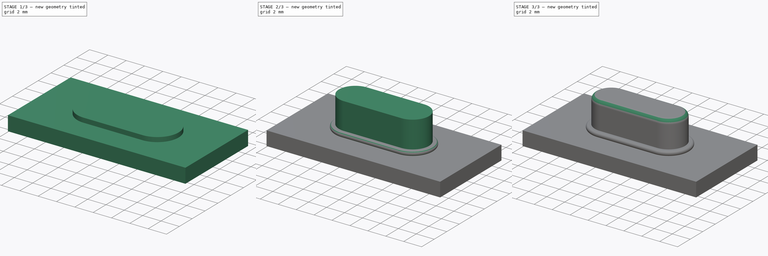
[diagram: build sequence overview — one tinted view per stage of 3, left to right]
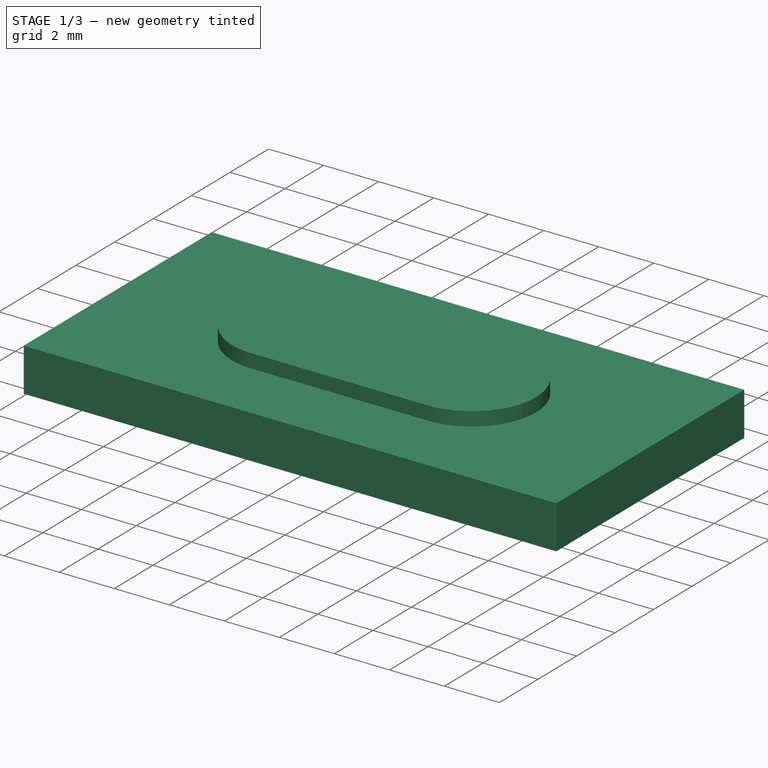
[diagram: stage 1 of 3 — iso view after this stage's code; geometry added in this stage tinted green]
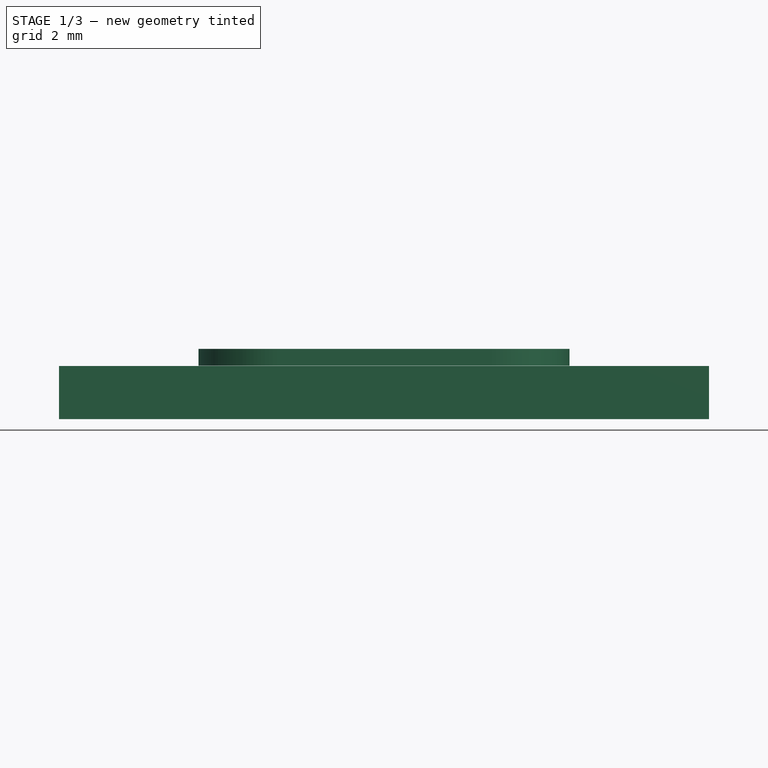
[diagram: stage 1 of 3 — front view after this stage's code; geometry added in this stage tinted green]
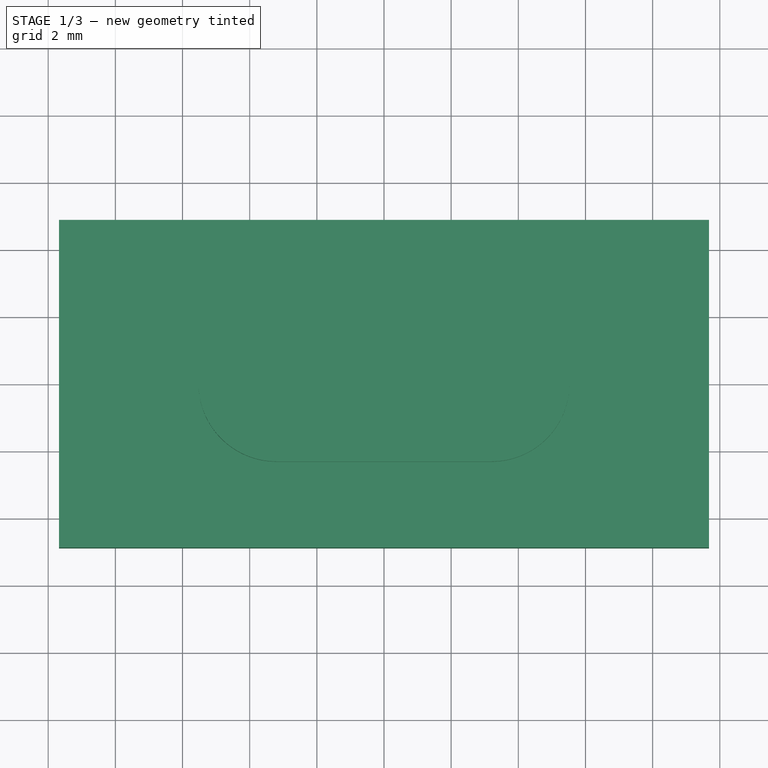
[diagram: stage 1 of 3 — top view after this stage's code; geometry added in this stage tinted green]
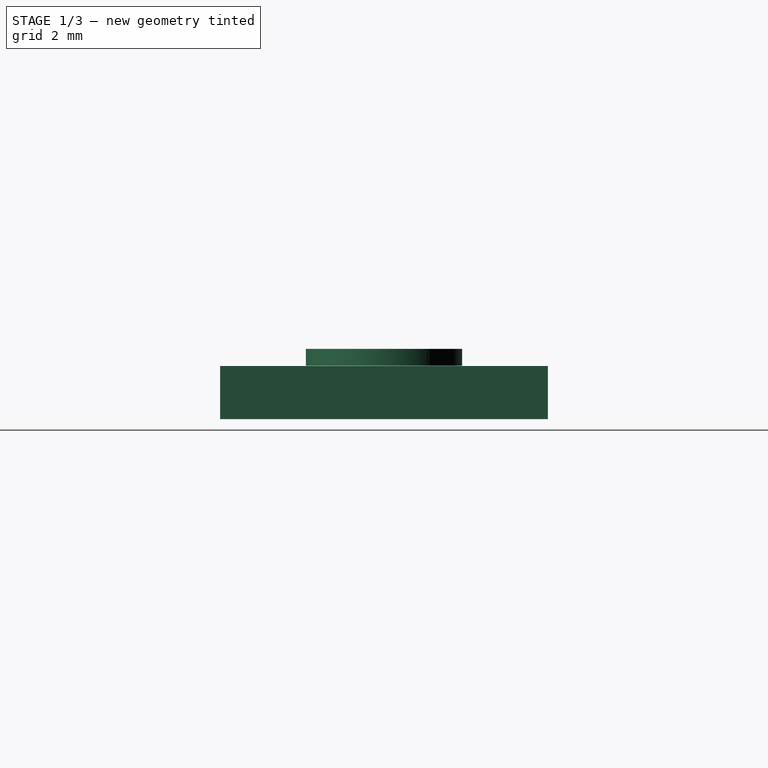
[diagram: stage 1 of 3 — right view after this stage's code; geometry added in this stage tinted green]
FCSTD DOCUMENT  (FreeCAD 0.19R24291 (Git))
Label: XTAL-HC49-4H_ksu
License: All rights reserved
LicenseURL: http://en.wikipedia.org/wiki/All_rights_reserved
objects: Sketcher::SketchObject×5, Part::FeaturePython×4, PartDesign::Pad×3, PartDesign::Fillet×2, PartDesign::Point×2, Part::Feature×2, PartDesign::Plane×1, PartDesign::Pocket×1, PartDesign::Body×1, App::DocumentObjectGroup×1
note: 27 computed .brp shape members not serialized (recipe doc carries the construction recipe); baked Part::Feature solids carry a one-line shape summary decoded from their .brp

FEATURE [Sketcher::SketchObject] Sketch
  FullyConstrained = true
  MapMode = 5
  Support = -> [XY_Plane]
  expr: Constraints[12] = 11.05 - 4.65
  sketch-geometry (4):
    g0: LineSegment StartX=-3.2 StartY=2.325 StartZ=0 EndX=3.2 EndY=2.325 EndZ=0
    g1: LineSegment StartX=-3.2 StartY=-2.325 StartZ=0 EndX=3.2 EndY=-2.325 EndZ=0
    g2: ArcOfCircle CenterX=-3.2 CenterY=0 CenterZ=0 NormalX=0 NormalY=0 NormalZ=1 AngleXU=0 Radius=2.325 StartAngle=1.5708 EndAngle=4.71239
    g3: ArcOfCircle CenterX=3.2 CenterY=-1e-16 CenterZ=0 NormalX=0 NormalY=0 NormalZ=1 AngleXU=0 Radius=2.325 StartAngle=4.71239 EndAngle=7.85398
  constraints (13):
    c: Horizontal(g0)
    c: PointOnObject(g2,g-1)
    c: Coincident(g2,g0)
    c: Coincident(g2,g1)
    c: Coincident(g3,g0)
    c: Coincident(g3,g1)
    c: DistanceY(g0) = 2.325
    c: Vertical(g0,g2)
    c: Vertical(g2,g1)
    c: Vertical(g0,g3)
    c: Vertical(g3,g1)
    c: Symmetric(g2,g3,g-2)
    c: DistanceX(g2,g3) = 6.4
FEATURE [PartDesign::Pad] Pad
  Direction = (1,1,1)
  Length = 0.5
  Length2 = 100
  Profile = -> Sketch
  Type = 0
FEATURE [Sketcher::SketchObject] Sketch004
  ExternalGeometry = -> [DatumPoint,DatumPoint001]
  FullyConstrained = true
  MapMode = 5
  Support = -> [XY_Plane]
  sketch-geometry (2):
    g0: Circle CenterX=2.44 CenterY=0 CenterZ=0 NormalX=0 NormalY=0 NormalZ=1 AngleXU=0 Radius=0.22
    g1: Circle CenterX=-2.44 CenterY=0 CenterZ=0 NormalX=0 NormalY=0 NormalZ=1 AngleXU=0 Radius=0.22
  constraints (4):
    c: Coincident(g0,g-3)
    c: Coincident(g1,g-4)
    c: Equal(g1,g0)
    c: Radius(g1) = 0.22
FEATURE [PartDesign::Body] Body
  Group = -> [Sketch,Pad,Fillet,DatumPlane,Sketch001,Pad001,Fillet001,Sketch002,DatumPoint,DatumPoint001,Pocket,Sketch003,Pad002,Sketch004]
  Origin = -> Origin
FEATURE [Part::FeaturePython] FCrtYd_lines  label="FCrtYd"  # a2plus imported part (geometry in sourceFile) (typed FeaturePython)
  fixedPosition = true
FEATURE [Part::FeaturePython] Filk_lines  label="FrontSilk"  # a2plus imported part (geometry in sourceFile) (typed FeaturePython)
  fixedPosition = true
FEATURE [Part::FeaturePython] THPs  label="PTHs"  # a2plus imported part (geometry in sourceFile) (typed FeaturePython)
  fixedPosition = true
FEATURE [Part::Feature] Shape001003  label="BotPads"
  shape: bbox 6.63 x 1.75 x 0.01 mm, 8 faces, 2 solids (baked)
FEATURE [Part::FeaturePython] newPCB  label="Pcb"  # a2plus imported part (geometry in sourceFile) (typed FeaturePython)
  fixedPosition = true
FEATURE [App::DocumentObjectGroup] XTAL_HC49_4H_fp
  Group = -> [FCrtYd_lines,Filk_lines,Shape001003,THPs,newPCB]
FEATURE [Part::Feature] Shape  label="XTAL-HC49-4H"
  shape: bbox 11.43 x 5.033 x 6.5 mm, 35 faces (baked)
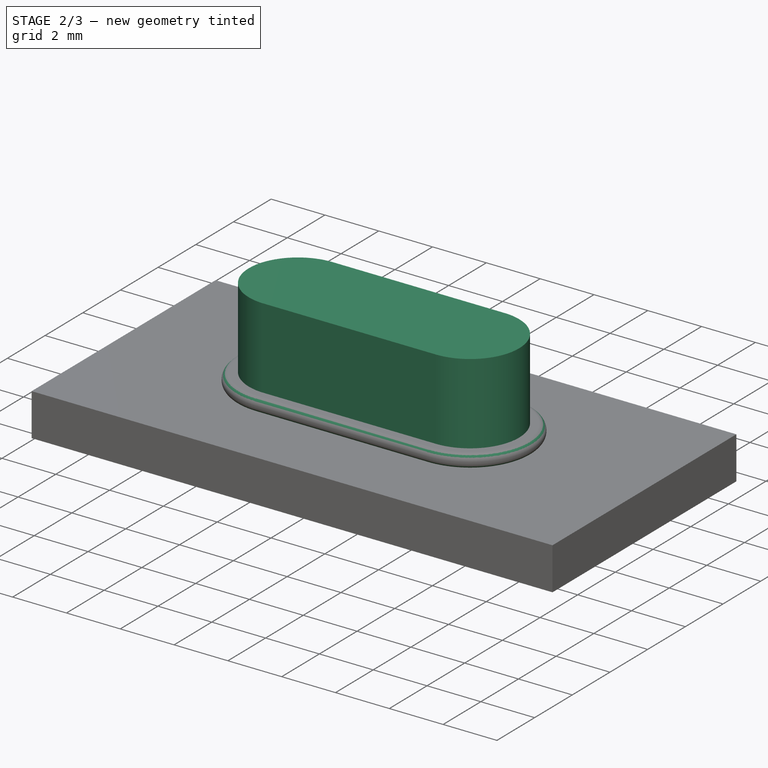
[diagram: stage 2 of 3 — iso view after this stage's code; geometry added in this stage tinted green]
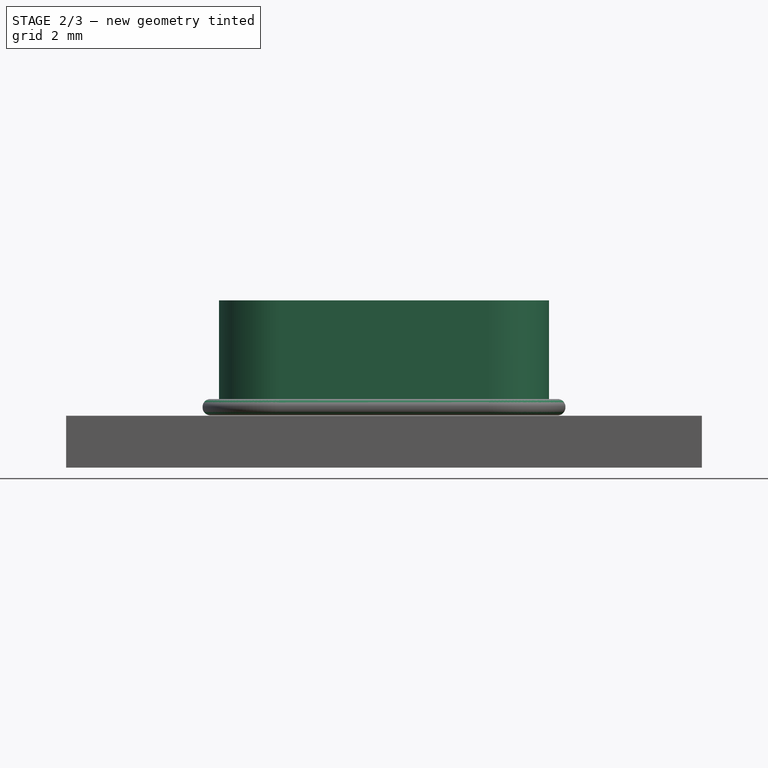
[diagram: stage 2 of 3 — front view after this stage's code; geometry added in this stage tinted green]
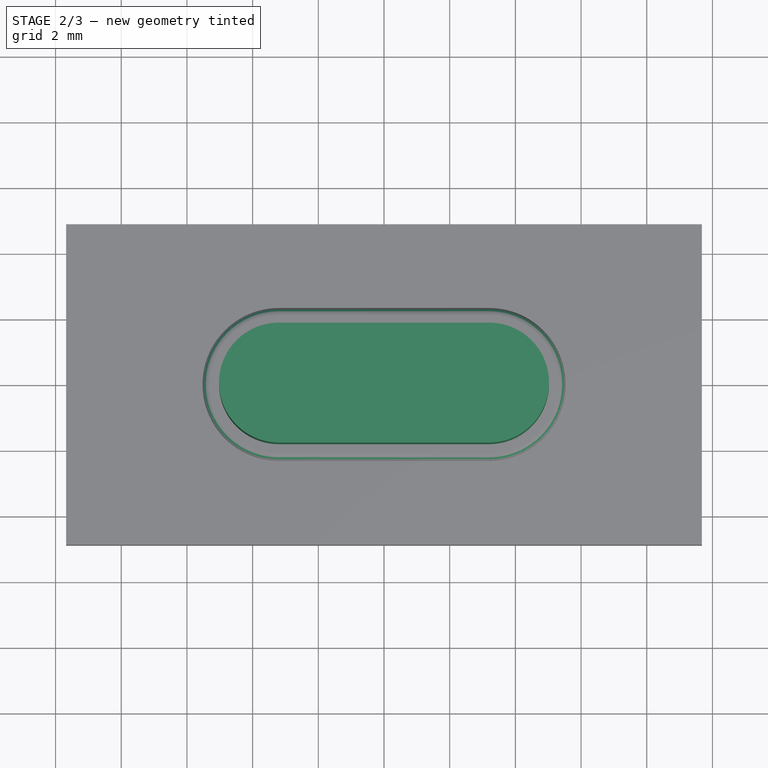
[diagram: stage 2 of 3 — top view after this stage's code; geometry added in this stage tinted green]
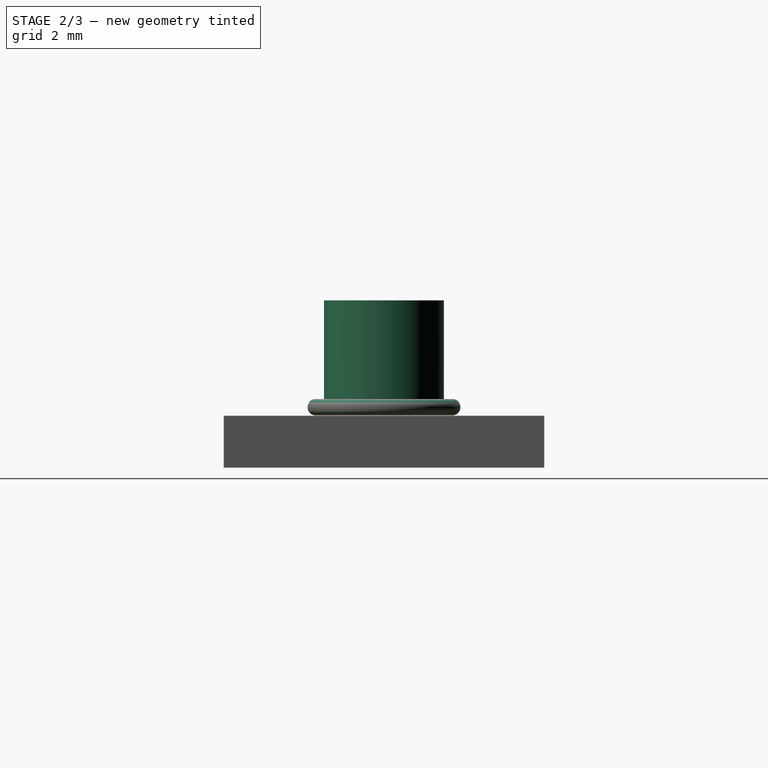
[diagram: stage 2 of 3 — right view after this stage's code; geometry added in this stage tinted green]
FEATURE [PartDesign::Fillet] Fillet  label="base"
  Base = -> Pad [Edge12,Edge4,Edge7,Edge10,Edge9,Edge11,Edge3,Edge6]
  BaseFeature = -> Pad
  Radius = 0.24
  SupportTransform = false
FEATURE [PartDesign::Plane] DatumPlane
  AttachmentOffset = pos=(0,0,0.5) rot=(0,0,1;0rad)
  Length = 60
  MapMode = 5
  Placement = pos=(0,0,0.5) rot=(0,0,1;0rad)
  ResizeMode = 0
  Support = -> [XY_Plane]
  Width = 60
FEATURE [Sketcher::SketchObject] Sketch001
  FullyConstrained = true
  MapMode = 5
  Placement = pos=(0,0,0.5) rot=(0,0,1;0rad)
  Support = -> [DatumPlane]
  expr: Constraints[12] = 11.05 - 4.65
  expr: Constraints[11] = 4.65 / 2 - 0.5
  sketch-geometry (4):
    g0: LineSegment StartX=-3.2 StartY=1.825 StartZ=0 EndX=3.2 EndY=1.825 EndZ=0
    g1: LineSegment StartX=-3.2 StartY=-1.825 StartZ=0 EndX=3.2 EndY=-1.825 EndZ=0
    g2: ArcOfCircle CenterX=-3.2 CenterY=0 CenterZ=0 NormalX=0 NormalY=0 NormalZ=1 AngleXU=0 Radius=1.825 StartAngle=1.5708 EndAngle=4.71239
    g3: ArcOfCircle CenterX=3.2 CenterY=0 CenterZ=0 NormalX=0 NormalY=0 NormalZ=1 AngleXU=0 Radius=1.825 StartAngle=4.71239 EndAngle=7.85398
  constraints (13):
    c: Horizontal(g0)
    c: PointOnObject(g2,g-1)
    c: Coincident(g2,g0)
    c: Coincident(g2,g1)
    c: Coincident(g3,g0)
    c: Coincident(g3,g1)
    c: Vertical(g0,g2)
    c: Vertical(g2,g1)
    c: Vertical(g0,g3)
    c: Vertical(g3,g1)
    c: Symmetric(g2,g3,g-2)
    c: Radius(g2) = 1.825
    c: DistanceX(g2,g3) = 6.4
FEATURE [PartDesign::Pad] Pad001
  BaseFeature = -> Fillet
  Direction = (1,1,1)
  Length = 3
  Length2 = 100
  Profile = -> Sketch001
  Type = 0
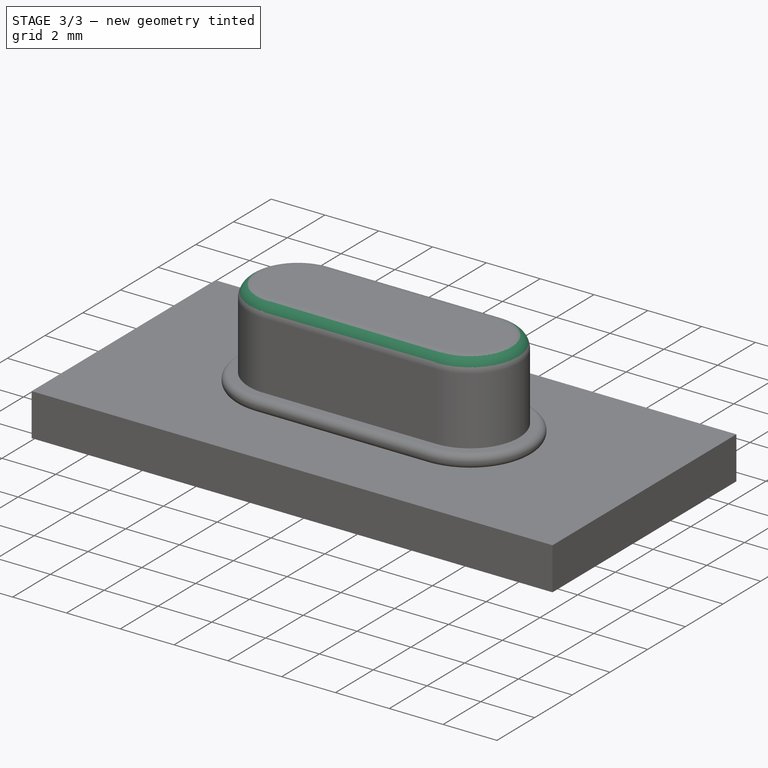
[diagram: stage 3 of 3 — iso view after this stage's code; geometry added in this stage tinted green]
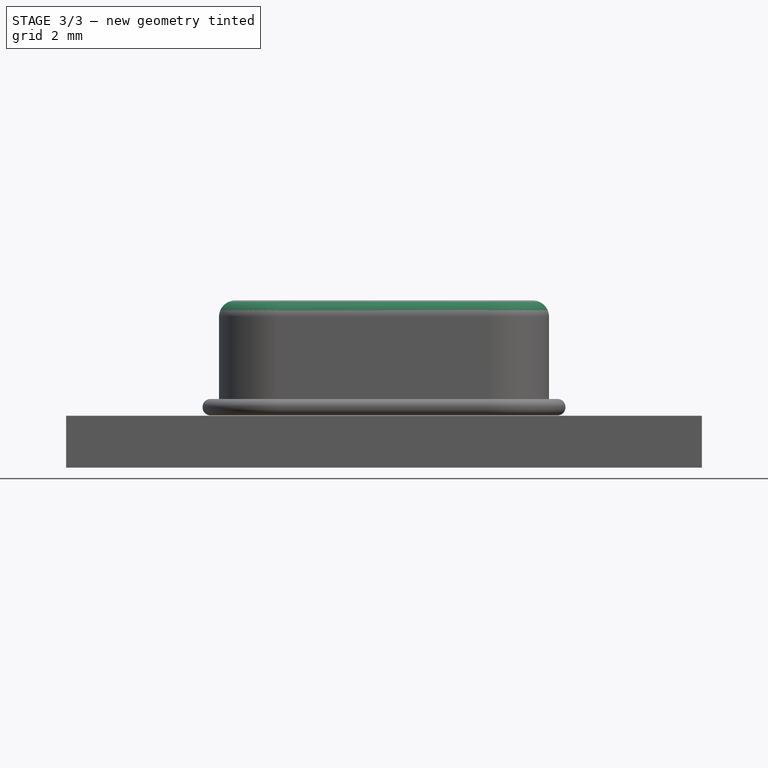
[diagram: stage 3 of 3 — front view after this stage's code; geometry added in this stage tinted green]
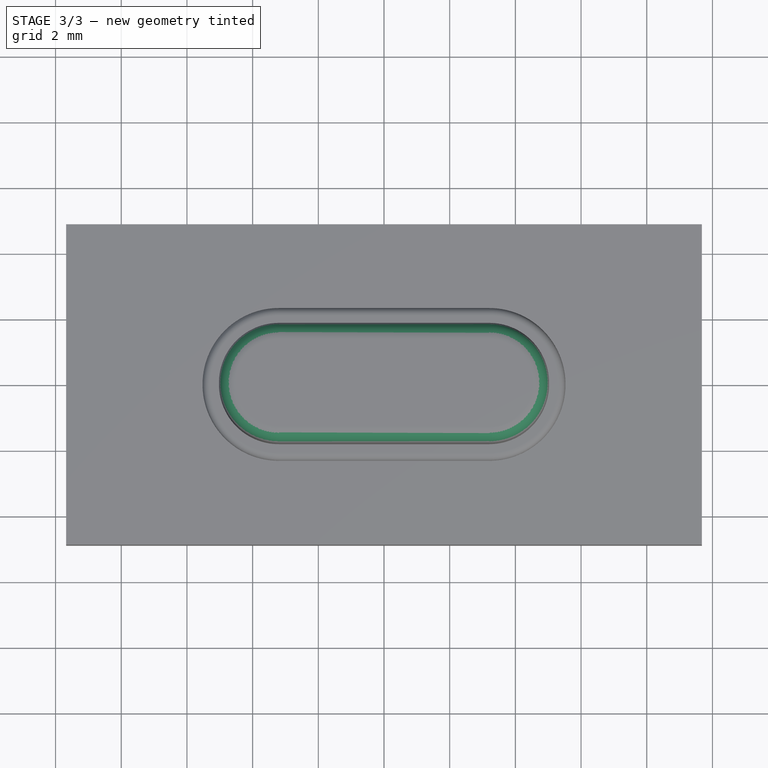
[diagram: stage 3 of 3 — top view after this stage's code; geometry added in this stage tinted green]
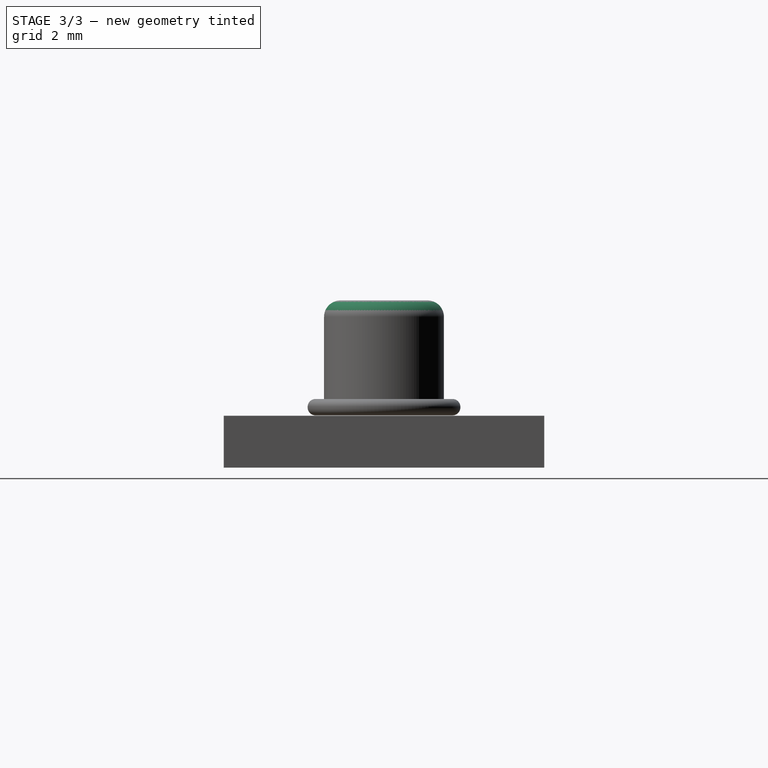
[diagram: stage 3 of 3 — right view after this stage's code; geometry added in this stage tinted green]
FEATURE [PartDesign::Fillet] Fillet001  label="case"
  Base = -> Pad001 [Edge39,Edge40,Edge35,Edge37]
  BaseFeature = -> Pad001
  Radius = 0.5
  SupportTransform = false
FEATURE [Sketcher::SketchObject] Sketch002
  FullyConstrained = true
  MapMode = 5
  Placement = pos=(0,0,0.5) rot=(0,0,1;0rad)
  Support = -> [DatumPlane]
  sketch-geometry (2):
    g0: Circle CenterX=-2.44 CenterY=0 CenterZ=0 NormalX=0 NormalY=0 NormalZ=1 AngleXU=0 Radius=0.8
    g1: Circle CenterX=2.44 CenterY=0 CenterZ=0 NormalX=0 NormalY=0 NormalZ=1 AngleXU=0 Radius=0.8
  constraints (5):
    c: PointOnObject(g0,g-1)
    c: Symmetric(g0,g1,g-2)
    c: Radius(g0) = 0.8
    c: Equal(g0,g1)
    c: DistanceX(g0,g1) = 4.88
FEATURE [PartDesign::Point] DatumPoint  label="pin1"
  AttacherType = Attacher::AttachEnginePoint
  MapMode = 36
  Placement = pos=(2.44,0,0.5) rot=(1,0,0;1.5708rad)
  Support = -> [Sketch002]
FEATURE [PartDesign::Point] DatumPoint001  label="pin2"
  AttacherType = Attacher::AttachEnginePoint
  MapMode = 36
  Placement = pos=(-2.44,0,0.5) rot=(1,0,0;1.5708rad)
  Support = -> [Sketch002]
FEATURE [PartDesign::Pocket] Pocket
  BaseFeature = -> Fillet001
  Length = 0.5
  Length2 = 100
  Profile = -> Sketch002
  Type = 0
FEATURE [Sketcher::SketchObject] Sketch003
  ExternalGeometry = -> [DatumPoint,DatumPoint001]
  FullyConstrained = true
  MapMode = 5
  Placement = pos=(0,0,0.5) rot=(0,0,1;0rad)
  Support = -> [DatumPlane]
  sketch-geometry (2):
    g0: Circle CenterX=2.44 CenterY=0 CenterZ=0 NormalX=0 NormalY=0 NormalZ=1 AngleXU=0 Radius=0.7
    g1: Circle CenterX=-2.44 CenterY=0 CenterZ=0 NormalX=0 NormalY=0 NormalZ=1 AngleXU=0 Radius=0.7
  constraints (4):
    c: Coincident(g0,g-3)
    c: Coincident(g1,g-4)
    c: Radius(g1) = 0.7
    c: Equal(g1,g0)
FEATURE [PartDesign::Pad] Pad002  label="pin insulation"
  BaseFeature = -> Pocket
  Direction = (1,1,1)
  Length = 0.5
  Length2 = 100
  Profile = -> Sketch003
  Reversed = true
  Type = 0
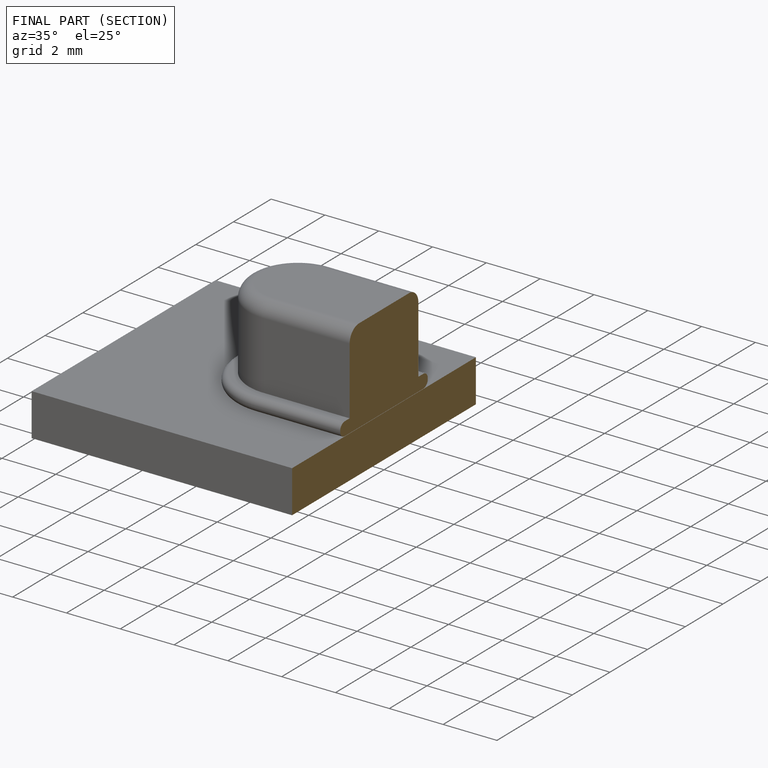
[diagram: finished part — half-section view (interior)]
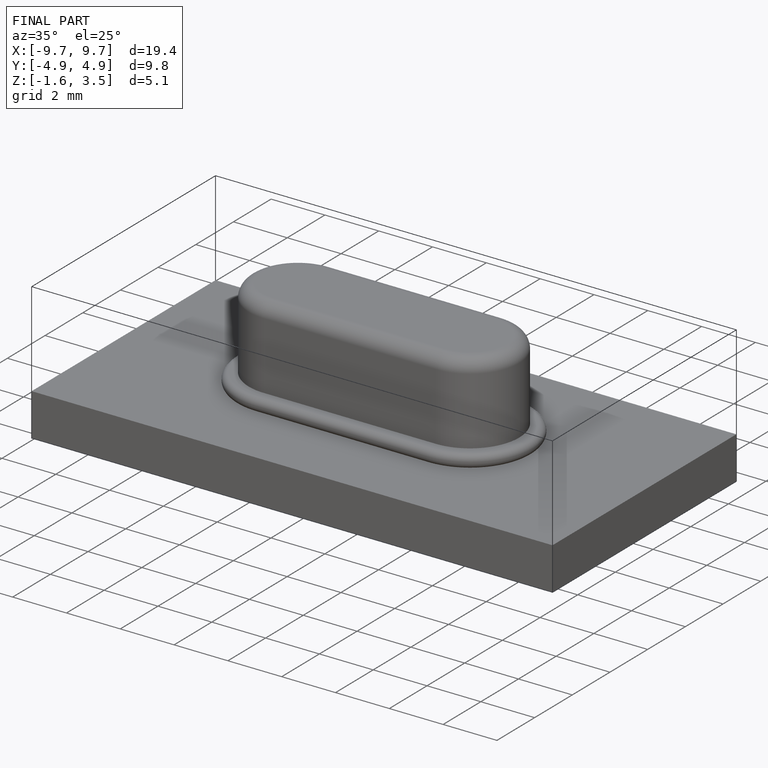
[diagram: finished part — iso view with bounding-box wireframe]
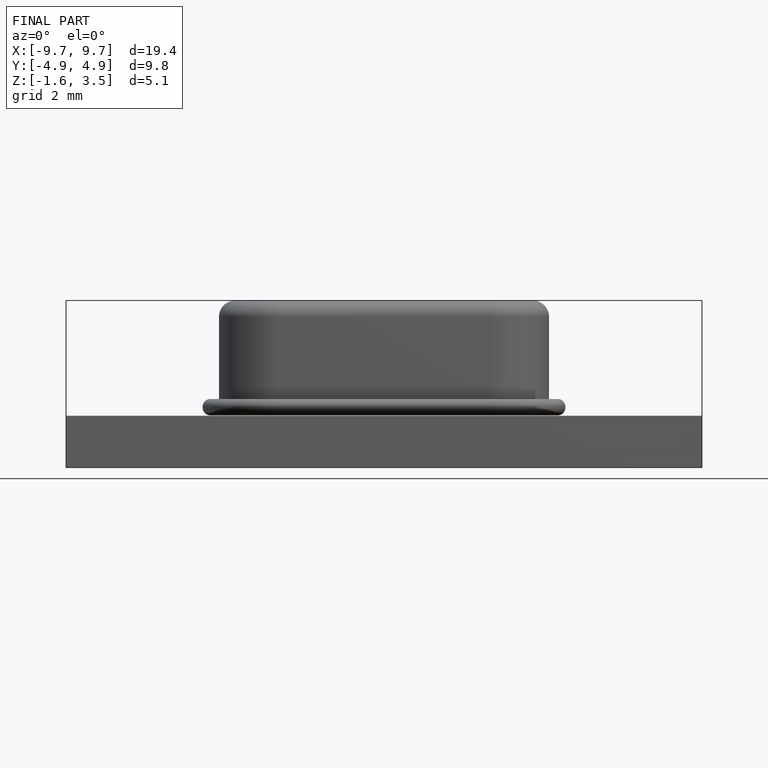
[diagram: finished part — front view with bounding-box wireframe]
